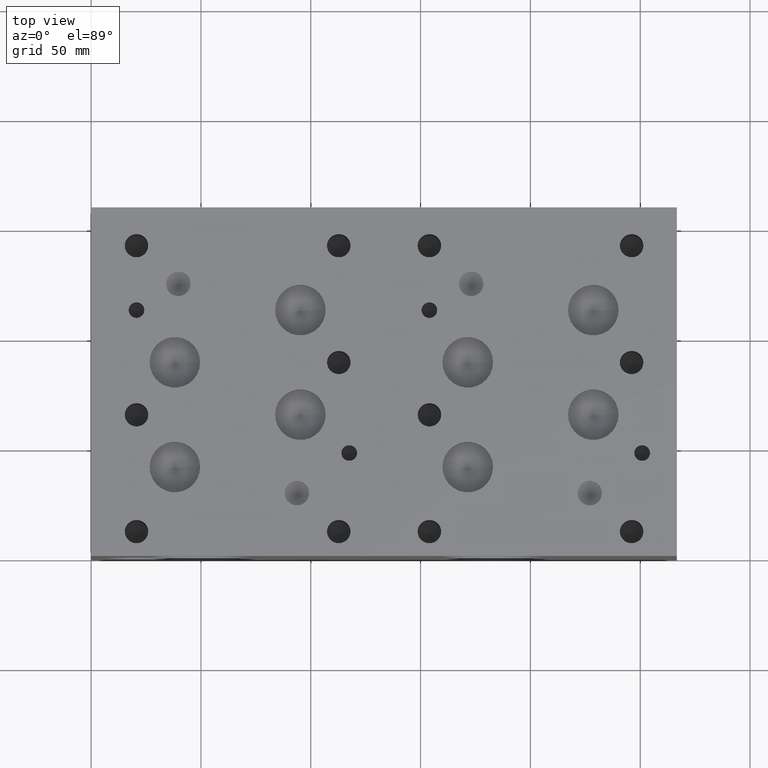
[diagram: clean part render]
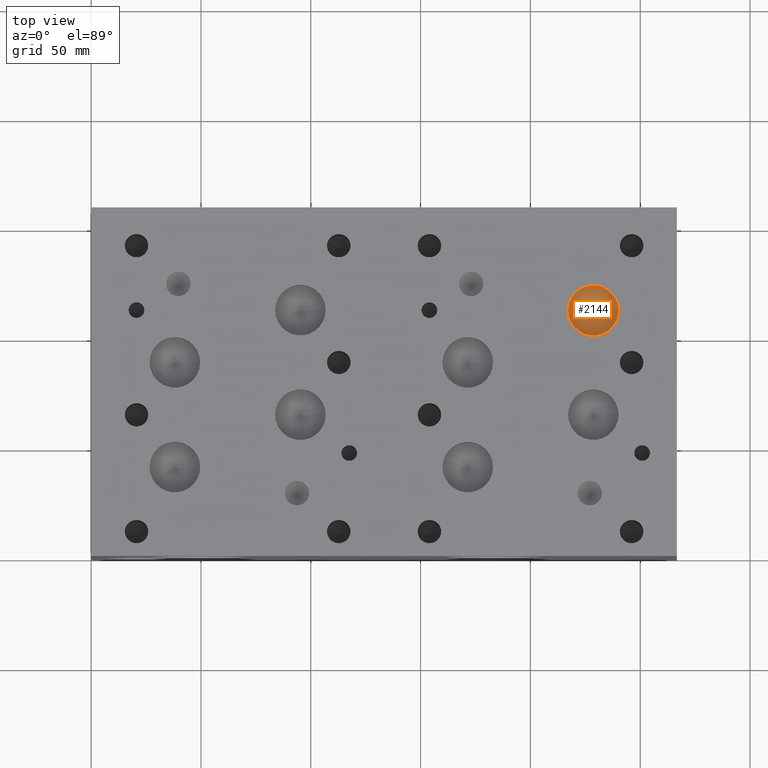
[diagram: same view with one face highlighted and labeled with its STEP entity id]
A machine part, top view. The second image highlights one B-rep face of the part: STEP entity #2144.
In plain terms, the highlighted conical surface has half-angle 60 deg.
Its self-contained STEP definition (entity closure, byte-faithful):
#2128=CARTESIAN_POINT('',(228.61270000000002,111.89970000000001,110.68533850000001));
#2129=DIRECTION('',(0.0,0.0,1.0));
#2130=DIRECTION('',(1.0,0.0,0.0));
#2131=AXIS2_PLACEMENT_3D('',#2128,#2129,#2130);
#2132=CONICAL_SURFACE('',#2131,5.753099999999982,60.000000251528604);
#2133=CARTESIAN_POINT('',(240.1189,111.89970000000001,114.0068923));
#2134=VERTEX_POINT('',#2133);
#2135=CARTESIAN_POINT('',(228.61270000000002,111.89970000000001,114.0068923));
#2136=DIRECTION('',(0.0,0.0,1.0));
#2137=DIRECTION('',(1.0,0.0,0.0));
#2138=AXIS2_PLACEMENT_3D('',#2135,#2136,#2137);
#2139=CIRCLE('',#2138,11.5062);
#2140=EDGE_CURVE('',#2134,#2134,#2139,.T.);
#2141=ORIENTED_EDGE('',*,*,#2140,.T.);
#2142=EDGE_LOOP('',(#2141));
#2143=FACE_OUTER_BOUND('',#2142,.T.);
#2144=ADVANCED_FACE('',(#2143),#2132,.F.);